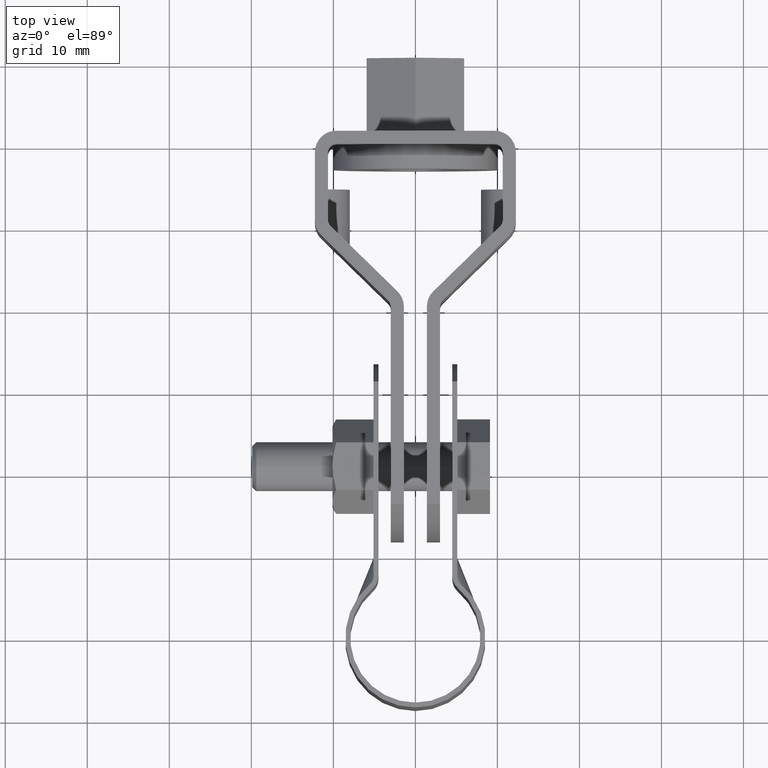
[diagram: clean part render]
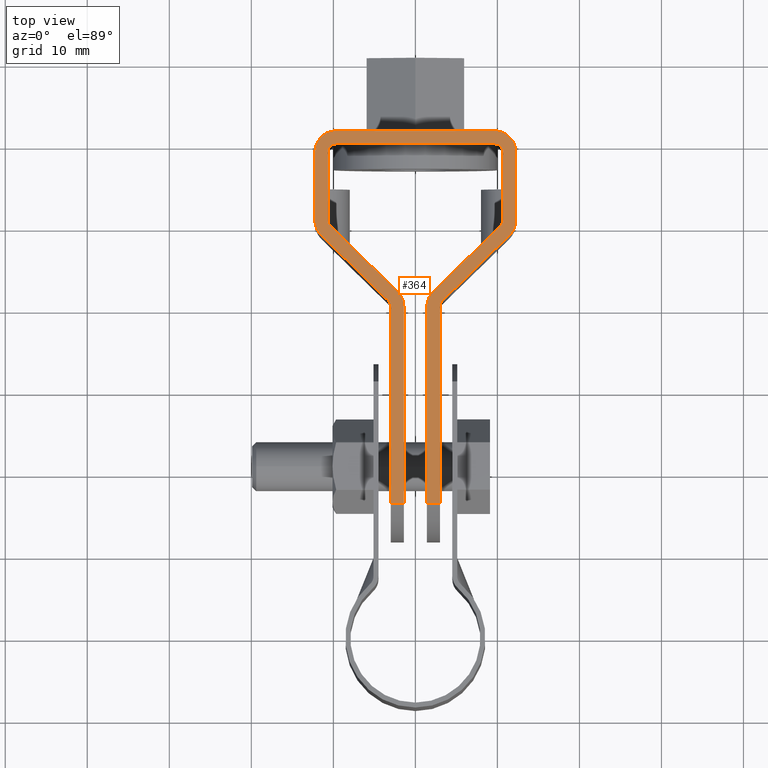
[diagram: same view with one face highlighted and labeled with its STEP entity id]
A machine part, top view. The second image highlights one B-rep face of the part: STEP entity #364.
In plain terms, the highlighted planar face has unit normal (0, -0, 1).
Its self-contained STEP definition (entity closure, byte-faithful):
#364 = ADVANCED_FACE( '', ( #601 ), #602, .T. );
#601 = FACE_OUTER_BOUND( '', #873, .T. );
#602 = PLANE( '', #874 );
#873 = EDGE_LOOP( '', ( #1688, #1689, #1690, #1691, #1692, #1693, #1694, #1695, #1696, #1697, #1698, #1699, #1700, #1701, #1702, #1703, #1704, #1705, #1706, #1707, #1708, #1709, #1710, #1711, #1712, #1713, #1714, #1715 ) );
#874 = AXIS2_PLACEMENT_3D( '', #1716, #1717, #1718 );
#1688 = ORIENTED_EDGE( '', *, *, #2162, .T. );
#1689 = ORIENTED_EDGE( '', *, *, #2127, .T. );
#1690 = ORIENTED_EDGE( '', *, *, #2136, .F. );
#1691 = ORIENTED_EDGE( '', *, *, #2130, .F. );
#1692 = ORIENTED_EDGE( '', *, *, #2135, .F. );
#1693 = ORIENTED_EDGE( '', *, *, #2124, .T. );
#1694 = ORIENTED_EDGE( '', *, *, #2171, .T. );
#1695 = ORIENTED_EDGE( '', *, *, #2172, .T. );
#1696 = ORIENTED_EDGE( '', *, *, #2173, .T. );
#1697 = ORIENTED_EDGE( '', *, *, #2079, .T. );
#1698 = ORIENTED_EDGE( '', *, *, #2170, .T. );
#1699 = ORIENTED_EDGE( '', *, *, #2122, .F. );
#1700 = ORIENTED_EDGE( '', *, *, #2109, .F. );
#1701 = ORIENTED_EDGE( '', *, *, #2174, .F. );
#1702 = ORIENTED_EDGE( '', *, *, #2175, .F. );
#1703 = ORIENTED_EDGE( '', *, *, #2176, .F. );
#1704 = ORIENTED_EDGE( '', *, *, #2086, .T. );
#1705 = ORIENTED_EDGE( '', *, *, #2082, .T. );
#1706 = ORIENTED_EDGE( '', *, *, #2177, .T. );
#1707 = ORIENTED_EDGE( '', *, *, #2178, .F. );
#1708 = ORIENTED_EDGE( '', *, *, #2115, .F. );
#1709 = ORIENTED_EDGE( '', *, *, #2112, .F. );
#1710 = ORIENTED_EDGE( '', *, *, #2119, .F. );
#1711 = ORIENTED_EDGE( '', *, *, #2120, .F. );
#1712 = ORIENTED_EDGE( '', *, *, #2169, .T. );
#1713 = ORIENTED_EDGE( '', *, *, #2167, .T. );
#1714 = ORIENTED_EDGE( '', *, *, #2164, .T. );
#1715 = ORIENTED_EDGE( '', *, *, #2160, .T. );
#1716 = CARTESIAN_POINT( '', ( 9.65000000391104, 59.1916806845416, 12.5000013613043 ) );
#1717 = DIRECTION( '', ( 1.87698704392248E-011, -9.98350074832307E-009, 1.00000000000000 ) );
#1718 = DIRECTION( '', ( 1.39877502405819E-011, 1.00000000000000, 9.98350074832280E-009 ) );
#2079 = EDGE_CURVE( '', #2505, #2506, #2507, .T. );
#2082 = EDGE_CURVE( '', #2510, #2511, #2512, .T. );
#2086 = EDGE_CURVE( '', #2517, #2510, #2518, .T. );
#2109 = EDGE_CURVE( '', #2554, #2556, #2557, .T. );
#2112 = EDGE_CURVE( '', #2559, #2561, #2562, .T. );
#2115 = EDGE_CURVE( '', #2561, #2565, #2566, .T. );
#2119 = EDGE_CURVE( '', #2569, #2559, #2571, .T. );
#2120 = EDGE_CURVE( '', #2572, #2569, #2573, .T. );
#2122 = EDGE_CURVE( '', #2556, #2575, #2576, .T. );
#2124 = EDGE_CURVE( '', #2578, #2579, #2580, .F. );
#2127 = EDGE_CURVE( '', #2583, #2584, #2585, .T. );
#2130 = EDGE_CURVE( '', #2588, #2589, #2590, .T. );
#2135 = EDGE_CURVE( '', #2578, #2588, #2597, .T. );
#2136 = EDGE_CURVE( '', #2589, #2584, #2598, .T. );
#2160 = EDGE_CURVE( '', #2639, #2637, #2640, .T. );
#2162 = EDGE_CURVE( '', #2637, #2583, #2642, .T. );
#2164 = EDGE_CURVE( '', #2644, #2639, #2645, .T. );
#2167 = EDGE_CURVE( '', #2648, #2644, #2649, .T. );
#2169 = EDGE_CURVE( '', #2572, #2648, #2651, .T. );
#2170 = EDGE_CURVE( '', #2506, #2575, #2652, .T. );
#2171 = EDGE_CURVE( '', #2579, #2653, #2654, .T. );
#2172 = EDGE_CURVE( '', #2653, #2655, #2656, .T. );
#2173 = EDGE_CURVE( '', #2655, #2505, #2657, .T. );
#2174 = EDGE_CURVE( '', #2658, #2554, #2659, .T. );
#2175 = EDGE_CURVE( '', #2660, #2658, #2661, .T. );
#2176 = EDGE_CURVE( '', #2517, #2660, #2662, .F. );
#2177 = EDGE_CURVE( '', #2511, #2663, #2664, .T. );
#2178 = EDGE_CURVE( '', #2565, #2663, #2665, .T. );
#2505 = VERTEX_POINT( '', #3203 );
#2506 = VERTEX_POINT( '', #3204 );
#2507 = CIRCLE( '', #3205, 2.59999999999999 );
#2510 = VERTEX_POINT( '', #3210 );
#2511 = VERTEX_POINT( '', #3211 );
#2512 = LINE( '', #3212, #3213 );
#2517 = VERTEX_POINT( '', #3218 );
#2518 = LINE( '', #3219, #3220 );
#2554 = VERTEX_POINT( '', #3293 );
#2556 = VERTEX_POINT( '', #3296 );
#2557 = LINE( '', #3297, #3298 );
#2559 = VERTEX_POINT( '', #3301 );
#2561 = VERTEX_POINT( '', #3304 );
#2562 = CIRCLE( '', #3305, 0.999999999999999 );
#2565 = VERTEX_POINT( '', #3310 );
#2566 = LINE( '', #3311, #3312 );
#2569 = VERTEX_POINT( '', #3317 );
#2571 = LINE( '', #3320, #3321 );
#2572 = VERTEX_POINT( '', #3322 );
#2573 = CIRCLE( '', #3323, 1.00000000000000 );
#2575 = VERTEX_POINT( '', #3326 );
#2576 = CIRCLE( '', #3327, 2.59999999999999 );
#2578 = VERTEX_POINT( '', #3330 );
#2579 = VERTEX_POINT( '', #3331 );
#2580 = CIRCLE( '', #3332, 1.00000000000000 );
#2583 = VERTEX_POINT( '', #3337 );
#2584 = VERTEX_POINT( '', #3338 );
#2585 = CIRCLE( '', #3339, 2.60000000000000 );
#2588 = VERTEX_POINT( '', #3344 );
#2589 = VERTEX_POINT( '', #3345 );
#2590 = LINE( '', #3346, #3347 );
#2597 = LINE( '', #3354, #3355 );
#2598 = LINE( '', #3356, #3357 );
#2637 = VERTEX_POINT( '', #3432 );
#2639 = VERTEX_POINT( '', #3435 );
#2640 = CIRCLE( '', #3436, 1.00000000000000 );
#2642 = LINE( '', #3439, #3440 );
#2644 = VERTEX_POINT( '', #3443 );
#2645 = LINE( '', #3444, #3445 );
#2648 = VERTEX_POINT( '', #3450 );
#2649 = CIRCLE( '', #3451, 1.00000000000000 );
#2651 = LINE( '', #3454, #3455 );
#2652 = LINE( '', #3456, #3457 );
#2653 = VERTEX_POINT( '', #3458 );
#2654 = LINE( '', #3459, #3460 );
#2655 = VERTEX_POINT( '', #3461 );
#2656 = CIRCLE( '', #3462, 2.59999999999999 );
#2657 = LINE( '', #3463, #3464 );
#2658 = VERTEX_POINT( '', #3465 );
#2659 = CIRCLE( '', #3466, 2.59999999999999 );
#2660 = VERTEX_POINT( '', #3467 );
#2661 = LINE( '', #3468, #3469 );
#2662 = CIRCLE( '', #3470, 0.999999999999998 );
#2663 = VERTEX_POINT( '', #3471 );
#2664 = LINE( '', #3472, #3473 );
#2665 = CIRCLE( '', #3474, 2.59999999999999 );
#3203 = CARTESIAN_POINT( '', ( 12.2500000039110, 59.1916806845052, 12.5000013612555 ) );
#3204 = CARTESIAN_POINT( '', ( 9.65000000394741, 61.7916806845416, 12.5000013872614 ) );
#3205 = AXIS2_PLACEMENT_3D( '', #3914, #3915, #3916 );
#3210 = CARTESIAN_POINT( '', ( -2.99999999668902, 16.2916807178070, 12.5000009332496 ) );
#3211 = CARTESIAN_POINT( '', ( -1.39999999668903, 16.2916807177846, 12.5000009332195 ) );
#3212 = CARTESIAN_POINT( '', ( -38.4737108532849, 16.2916807231947, 12.5000009398286 ) );
#3213 = VECTOR( '', #3919, 999.999999999998 );
#3218 = CARTESIAN_POINT( '', ( -2.99999999635257, 40.3458270892391, 12.5000011733941 ) );
#3219 = CARTESIAN_POINT( '', ( -2.99999999634667, 40.7672908581292, 12.5000011776018 ) );
#3220 = VECTOR( '', #3929, 1000.00000000000 );
#3293 = CARTESIAN_POINT( '', ( -12.2499999962051, 50.8874864839624, 12.5000012788104 ) );
#3296 = CARTESIAN_POINT( '', ( -12.2499999960889, 59.1916806848483, 12.5000013617154 ) );
#3297 = CARTESIAN_POINT( '', ( -12.2499999962051, 50.8874864839624, 12.5000012788104 ) );
#3298 = VECTOR( '', #3960, 1000.00000000000 );
#3301 = CARTESIAN_POINT( '', ( -10.6499999962051, 50.8874864537159, 12.5000012787804 ) );
#3304 = CARTESIAN_POINT( '', ( -10.3483238317456, 50.1717044891932, 12.5000012716287 ) );
#3305 = AXIS2_PLACEMENT_3D( '', #3963, #3964, #3965 );
#3310 = CARTESIAN_POINT( '', ( -2.18435802394724, 42.2068601667518, 12.5000011919585 ) );
#3311 = CARTESIAN_POINT( '', ( -10.3483238317456, 50.1717044891932, 12.5000012716287 ) );
#3312 = VECTOR( '', #3968, 1000.00000000000 );
#3317 = CARTESIAN_POINT( '', ( -10.6499999960890, 59.1916806848259, 12.5000013616853 ) );
#3320 = CARTESIAN_POINT( '', ( -10.6499999960890, 59.1916806848259, 12.5000013616853 ) );
#3321 = VECTOR( '', #3972, 1000.00000000000 );
#3322 = CARTESIAN_POINT( '', ( -9.64999999607496, 60.1916806848119, 12.5000013716501 ) );
#3323 = AXIS2_PLACEMENT_3D( '', #3973, #3974, #3975 );
#3326 = CARTESIAN_POINT( '', ( -9.64999999605258, 61.7916806848119, 12.5000013876237 ) );
#3327 = AXIS2_PLACEMENT_3D( '', #3977, #3978, #3979 );
#3330 = CARTESIAN_POINT( '', ( 3.00000000364742, 40.3458270891549, 12.5000011732816 ) );
#3331 = CARTESIAN_POINT( '', ( 3.30167616812693, 41.0616090536692, 12.5000011804219 ) );
#3332 = AXIS2_PLACEMENT_3D( '', #3981, #3982, #3983 );
#3337 = CARTESIAN_POINT( '', ( 2.18435803129416, 42.2068601666903, 12.5000011918765 ) );
#3338 = CARTESIAN_POINT( '', ( 1.40000000364743, 40.3458270589532, 12.5000011733116 ) );
#3339 = AXIS2_PLACEMENT_3D( '', #3986, #3987, #3988 );
#3344 = CARTESIAN_POINT( '', ( 3.00000000331096, 16.2916807177229, 12.5000009331370 ) );
#3345 = CARTESIAN_POINT( '', ( 1.40000000331096, 16.2916807177452, 12.5000009331670 ) );
#3346 = CARTESIAN_POINT( '', ( 38.4737108599069, 16.2916807221181, 12.5000009383844 ) );
#3347 = VECTOR( '', #3991, 1000.00000000000 );
#3354 = CARTESIAN_POINT( '', ( 3.00000000365332, 40.7672908580450, 12.5000011774892 ) );
#3355 = VECTOR( '', #4004, 1000.00000000000 );
#3356 = CARTESIAN_POINT( '', ( 1.40000000324802, 11.7916806846571, 12.5000008882413 ) );
#3357 = VECTOR( '', #4005, 1000.00000000000 );
#3432 = CARTESIAN_POINT( '', ( 10.3483238393154, 50.1717044889034, 12.5000012712403 ) );
#3435 = CARTESIAN_POINT( '', ( 10.6500000037949, 50.8874864534176, 12.5000012783806 ) );
#3436 = AXIS2_PLACEMENT_3D( '', #4041, #4042, #4043 );
#3439 = CARTESIAN_POINT( '', ( 10.3483238393154, 50.1717044889034, 12.5000012712403 ) );
#3440 = VECTOR( '', #4045, 1000.00000000000 );
#3443 = CARTESIAN_POINT( '', ( 10.6500000039110, 59.1916806845276, 12.5000013612856 ) );
#3444 = CARTESIAN_POINT( '', ( 10.6500000039110, 59.1916806845276, 12.5000013612856 ) );
#3445 = VECTOR( '', #4047, 1000.00000000000 );
#3450 = CARTESIAN_POINT( '', ( 9.65000000392503, 60.1916806845416, 12.5000013712878 ) );
#3451 = AXIS2_PLACEMENT_3D( '', #4050, #4051, #4052 );
#3454 = CARTESIAN_POINT( '', ( -9.64999999607498, 60.1916806848115, 12.5000013716501 ) );
#3455 = VECTOR( '', #4054, 1000.00000000000 );
#3456 = CARTESIAN_POINT( '', ( 9.65000000394741, 61.7916806845416, 12.5000013872614 ) );
#3457 = VECTOR( '', #4055, 1000.00000000000 );
#3458 = CARTESIAN_POINT( '', ( 11.4656419761481, 49.0264533758822, 12.5000012597857 ) );
#3459 = CARTESIAN_POINT( '', ( 3.90167616813513, 41.6469748802504, 12.5000011862546 ) );
#3460 = VECTOR( '', #4056, 1000.00000000000 );
#3461 = CARTESIAN_POINT( '', ( 12.2500000037949, 50.8874864836193, 12.5000012783506 ) );
#3462 = AXIS2_PLACEMENT_3D( '', #4057, #4058, #4059 );
#3463 = CARTESIAN_POINT( '', ( 12.2500000037949, 50.8874864836193, 12.5000012783506 ) );
#3464 = VECTOR( '', #4060, 1000.00000000000 );
#3465 = CARTESIAN_POINT( '', ( -11.4656419686104, 49.0264533762033, 12.5000012602161 ) );
#3466 = AXIS2_PLACEMENT_3D( '', #4061, #4062, #4063 );
#3467 = CARTESIAN_POINT( '', ( -3.30167616081205, 41.0616090537619, 12.5000011805458 ) );
#3468 = CARTESIAN_POINT( '', ( -3.90167616080387, 41.6469748803599, 12.5000011864011 ) );
#3469 = VECTOR( '', #4064, 1000.00000000000 );
#3470 = AXIS2_PLACEMENT_3D( '', #4065, #4066, #4067 );
#3471 = CARTESIAN_POINT( '', ( -1.39999999635258, 40.3458270589927, 12.5000011733641 ) );
#3472 = CARTESIAN_POINT( '', ( -1.39999999675198, 11.7916806846965, 12.5000008882938 ) );
#3473 = VECTOR( '', #4068, 1000.00000000000 );
#3474 = AXIS2_PLACEMENT_3D( '', #4069, #4070, #4071 );
#3914 = CARTESIAN_POINT( '', ( 9.65000000391104, 59.1916806845416, 12.5000013613043 ) );
#3915 = DIRECTION( '', ( 1.87698704392248E-011, -9.98350074832307E-009, 1.00000000000000 ) );
#3916 = DIRECTION( '', ( 1.00000000000000, -1.39877500531929E-011, -1.87698705788715E-011 ) );
#3919 = DIRECTION( '', ( 1.00000000000000, -1.39876275925575E-011, -1.87698705788703E-011 ) );
#3929 = DIRECTION( '', ( -1.39875167576441E-011, -1.00000000000000, -9.98350074832280E-009 ) );
#3960 = DIRECTION( '', ( 1.39876277799465E-011, 1.00000000000000, 9.98350074832280E-009 ) );
#3963 = CARTESIAN_POINT( '', ( -9.64999999620511, 50.8874864537019, 12.5000012787616 ) );
#3964 = DIRECTION( '', ( 1.87698704392248E-011, -9.98350074832307E-009, 1.00000000000000 ) );
#3965 = DIRECTION( '', ( -1.00000000000000, 1.39876275925575E-011, 1.87698705788703E-011 ) );
#3968 = DIRECTION( '', ( 0.715781964508736, -0.698323835540514, -6.98515166942712E-009 ) );
#3972 = DIRECTION( '', ( -1.39876277799465E-011, -1.00000000000000, -9.98350074832280E-009 ) );
#3973 = CARTESIAN_POINT( '', ( -9.64999999608895, 59.1916806848119, 12.5000013616666 ) );
#3974 = DIRECTION( '', ( 1.87698704392248E-011, -9.98350074832307E-009, 1.00000000000000 ) );
#3975 = DIRECTION( '', ( 1.39876277799465E-011, 1.00000000000000, 9.98350074832281E-009 ) );
#3977 = CARTESIAN_POINT( '', ( -9.64999999608895, 59.1916806848119, 12.5000013616666 ) );
#3978 = DIRECTION( '', ( -1.87698704392248E-011, 9.98350074832307E-009, -1.00000000000000 ) );
#3979 = DIRECTION( '', ( -1.00000000000000, 1.39876275925575E-011, 1.87698705788703E-011 ) );
#3981 = CARTESIAN_POINT( '', ( 4.00000000364742, 40.3458270891409, 12.5000011732628 ) );
#3982 = DIRECTION( '', ( 1.87698704392248E-011, -9.98350074832307E-009, 1.00000000000000 ) );
#3983 = DIRECTION( '', ( 1.00000000000000, -1.39877500531929E-011, -1.87698705788715E-011 ) );
#3986 = CARTESIAN_POINT( '', ( 4.00000000364742, 40.3458270589168, 12.5000011732628 ) );
#3987 = DIRECTION( '', ( 1.87698704392248E-011, -9.98350074832307E-009, 1.00000000000000 ) );
#3988 = DIRECTION( '', ( 1.00000000000000, -1.39877500531929E-011, -1.87698705788715E-011 ) );
#3991 = DIRECTION( '', ( -1.00000000000000, 1.39877500531929E-011, 1.87698705788715E-011 ) );
#4004 = DIRECTION( '', ( -1.39878612628844E-011, -1.00000000000000, -9.98350074832280E-009 ) );
#4005 = DIRECTION( '', ( 1.39878612628844E-011, 1.00000000000000, 9.98350074832280E-009 ) );
#4041 = CARTESIAN_POINT( '', ( 9.65000000379488, 50.8874864534316, 12.5000012783994 ) );
#4042 = DIRECTION( '', ( -1.87698704392248E-011, 9.98350074832307E-009, -1.00000000000000 ) );
#4043 = DIRECTION( '', ( 1.00000000000000, -1.39877500531929E-011, -1.87698705788715E-011 ) );
#4045 = DIRECTION( '', ( -0.715781964528273, -0.698323835520488, -6.95828139975370E-009 ) );
#4047 = DIRECTION( '', ( -1.39877502405819E-011, -1.00000000000000, -9.98350074832280E-009 ) );
#4050 = CARTESIAN_POINT( '', ( 9.65000000391104, 59.1916806845416, 12.5000013613043 ) );
#4051 = DIRECTION( '', ( -1.87698704392248E-011, 9.98350074832307E-009, -1.00000000000000 ) );
#4052 = DIRECTION( '', ( 1.39877502405819E-011, 1.00000000000000, 9.98350074832280E-009 ) );
#4054 = DIRECTION( '', ( 1.00000000000000, -1.39877500531929E-011, -1.87698705788715E-011 ) );
#4055 = DIRECTION( '', ( -1.00000000000000, 1.39877500531929E-011, 1.87698705788715E-011 ) );
#4056 = DIRECTION( '', ( 0.715781964528273, 0.698323835520488, 6.95828139975370E-009 ) );
#4057 = CARTESIAN_POINT( '', ( 9.65000000379488, 50.8874864836557, 12.5000012783994 ) );
#4058 = DIRECTION( '', ( 1.87698704392248E-011, -9.98350074832307E-009, 1.00000000000000 ) );
#4059 = DIRECTION( '', ( 0.698323835520490, -0.715781964528272, -7.15911722642150E-009 ) );
#4060 = DIRECTION( '', ( 1.39877502405819E-011, 1.00000000000000, 9.98350074832280E-009 ) );
#4061 = CARTESIAN_POINT( '', ( -9.64999999620511, 50.8874864839260, 12.5000012787616 ) );
#4062 = DIRECTION( '', ( -1.87698704392238E-011, 9.98350074832307E-009, -1.00000000000000 ) );
#4063 = DIRECTION( '', ( -0.698323835540512, -0.715781964508738, -7.13290233039142E-009 ) );
#4064 = DIRECTION( '', ( -0.715781964508736, 0.698323835540514, 6.98515166942712E-009 ) );
#4065 = CARTESIAN_POINT( '', ( -3.99999999635256, 40.3458270892531, 12.5000011734129 ) );
#4066 = DIRECTION( '', ( -1.87698704392248E-011, 9.98350074832307E-009, -1.00000000000000 ) );
#4067 = DIRECTION( '', ( -1.00000000000000, 1.39876275925575E-011, 1.87698705788703E-011 ) );
#4068 = DIRECTION( '', ( 1.39875167576441E-011, 1.00000000000000, 9.98350074832280E-009 ) );
#4069 = CARTESIAN_POINT( '', ( -3.99999999635256, 40.3458270590290, 12.5000011734129 ) );
#4070 = DIRECTION( '', ( -1.87698704392248E-011, 9.98350074832307E-009, -1.00000000000000 ) );
#4071 = DIRECTION( '', ( -1.00000000000000, 1.39876275925575E-011, 1.87698705788703E-011 ) );